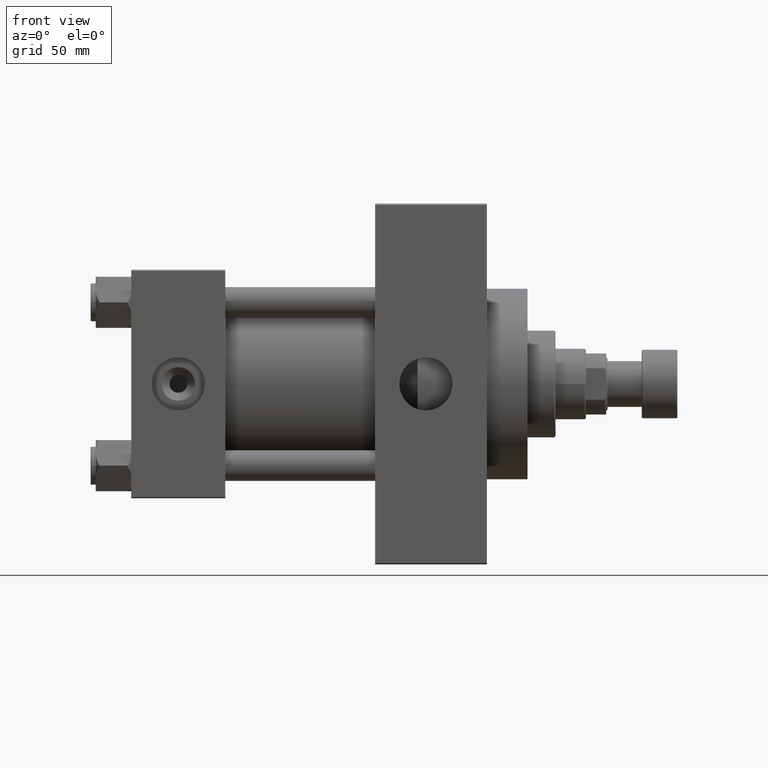
[diagram: clean part render]
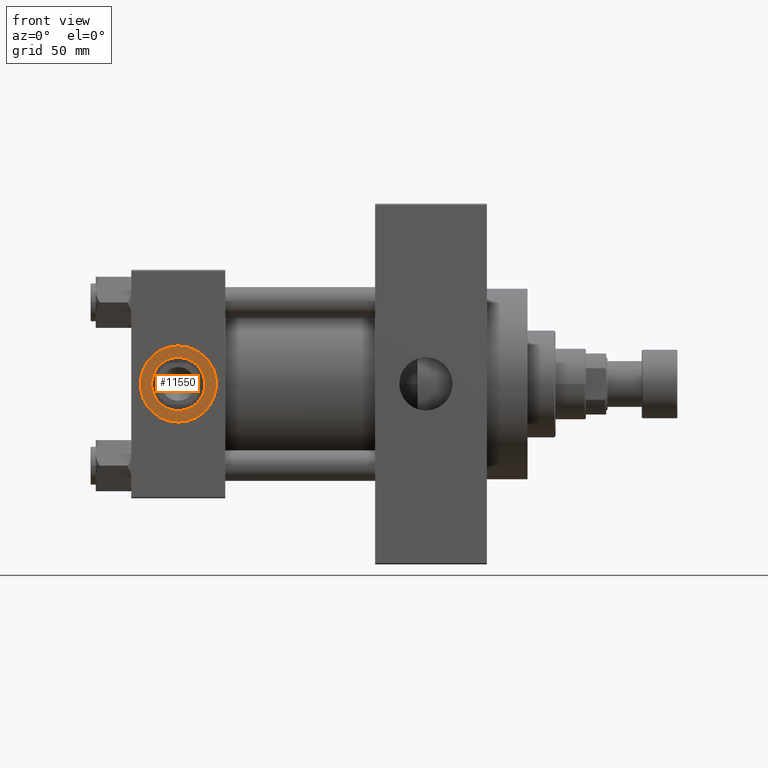
[diagram: same view with one face highlighted and labeled with its STEP entity id]
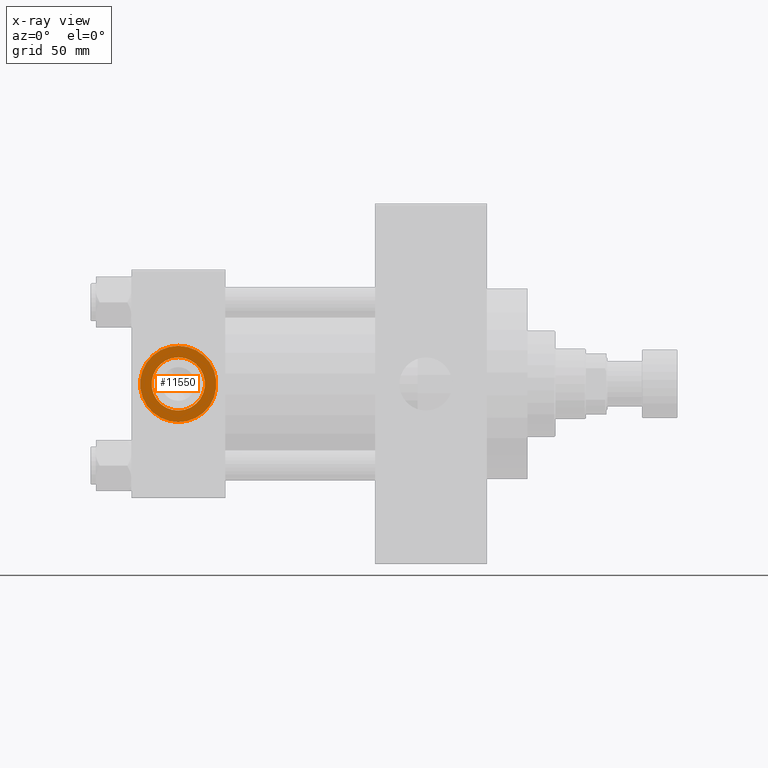
[diagram: x-ray of the same camera — body ghosted, the highlighted face saturated]
A machine part, front view. The second image highlights one B-rep face of the part: STEP entity #11550.
The next image is the same camera in x-ray: the body ghosted, the highlighted face saturated — about 0% of this face is hidden behind the body in this view.
In plain terms, the highlighted planar face has unit normal (0, -1, -0).
Its self-contained STEP definition (entity closure, byte-faithful):
#35 = VERTEX_POINT ( 'NONE', #4876 ) ;
#126 = CARTESIAN_POINT ( 'NONE',  ( 18.50000000000000000, -44.79999999999999716, -3.452099717193846907E-15 ) ) ;
#3184 = VERTEX_POINT ( 'NONE', #4484 ) ;
#4013 = AXIS2_PLACEMENT_3D ( 'NONE', #45015, #25270, #44522 ) ;
#4484 = CARTESIAN_POINT ( 'NONE',  ( 18.50000000000000000, -44.79999999999999716, -15.00000000000000533 ) ) ;
#4876 = CARTESIAN_POINT ( 'NONE',  ( 18.50000000000000355, -44.79999999999999716, 14.99999999999999822 ) ) ;
#6102 = EDGE_CURVE ( 'NONE', #35, #3184, #30265, .T. ) ;
#6652 = EDGE_LOOP ( 'NONE', ( #8529, #28188 ) ) ;
#7859 = DIRECTION ( 'NONE',  ( 0.000000000000000000, -1.000000000000000000, -8.673617379884036705E-17 ) ) ;
#7929 = EDGE_CURVE ( 'NONE', #36942, #21146, #16783, .T. ) ;
#8002 = CIRCLE ( 'NONE', #4013, 10.48000000000000043 ) ;
#8105 = DIRECTION ( 'NONE',  ( 0.000000000000000000, 0.000000000000000000, -1.000000000000000000 ) ) ;
#8121 = FACE_BOUND ( 'NONE', #34638, .T. ) ;
#8529 = ORIENTED_EDGE ( 'NONE', *, *, #21105, .T. ) ;
#9048 = EDGE_CURVE ( 'NONE', #21146, #36942, #8002, .T. ) ;
#11550 = ADVANCED_FACE ( 'NONE', ( #8121, #20106 ), #34603, .T. ) ;
#11860 = DIRECTION ( 'NONE',  ( 0.000000000000000000, -1.000000000000000000, -8.673617379884036705E-17 ) ) ;
#11895 = DIRECTION ( 'NONE',  ( 0.000000000000000000, 0.000000000000000000, -1.000000000000000000 ) ) ;
#14168 = DIRECTION ( 'NONE',  ( 0.000000000000000000, -1.000000000000000000, -8.673617379884036705E-17 ) ) ;
#16783 = CIRCLE ( 'NONE', #24737, 10.48000000000000043 ) ;
#18896 = DIRECTION ( 'NONE',  ( 0.000000000000000000, 0.000000000000000000, -1.000000000000000000 ) ) ;
#20106 = FACE_OUTER_BOUND ( 'NONE', #6652, .T. ) ;
#21105 = EDGE_CURVE ( 'NONE', #3184, #35, #32275, .T. ) ;
#21146 = VERTEX_POINT ( 'NONE', #22396 ) ;
#22155 = ORIENTED_EDGE ( 'NONE', *, *, #7929, .F. ) ;
#22396 = CARTESIAN_POINT ( 'NONE',  ( 18.50000000000000000, -44.79999999999999716, -10.48000000000000398 ) ) ;
#23269 = ORIENTED_EDGE ( 'NONE', *, *, #9048, .F. ) ;
#24737 = AXIS2_PLACEMENT_3D ( 'NONE', #126, #7859, #8105 ) ;
#25270 = DIRECTION ( 'NONE',  ( 0.000000000000000000, -1.000000000000000000, -8.673617379884036705E-17 ) ) ;
#26906 = CARTESIAN_POINT ( 'NONE',  ( 18.50000000000000000, -44.79999999999999716, -3.452099717193846907E-15 ) ) ;
#28188 = ORIENTED_EDGE ( 'NONE', *, *, #6102, .T. ) ;
#28688 = AXIS2_PLACEMENT_3D ( 'NONE', #26906, #46147, #11895 ) ;
#30265 = CIRCLE ( 'NONE', #28688, 15.00000000000000178 ) ;
#30643 = AXIS2_PLACEMENT_3D ( 'NONE', #37884, #14168, #18896 ) ;
#31621 = DIRECTION ( 'NONE',  ( 0.000000000000000000, 8.673617379884036705E-17, -1.000000000000000000 ) ) ;
#32275 = CIRCLE ( 'NONE', #30643, 15.00000000000000178 ) ;
#34541 = CARTESIAN_POINT ( 'NONE',  ( 18.50000000000000000, -44.79999999999999716, 10.47999999999999687 ) ) ;
#34603 = PLANE ( 'NONE',  #44838 ) ;
#34638 = EDGE_LOOP ( 'NONE', ( #23269, #22155 ) ) ;
#35360 = CARTESIAN_POINT ( 'NONE',  ( 18.50000000000000000, -44.79999999999999716, -3.452099717193846907E-15 ) ) ;
#36942 = VERTEX_POINT ( 'NONE', #34541 ) ;
#37884 = CARTESIAN_POINT ( 'NONE',  ( 18.50000000000000000, -44.79999999999999716, -3.452099717193846907E-15 ) ) ;
#44522 = DIRECTION ( 'NONE',  ( 0.000000000000000000, 0.000000000000000000, -1.000000000000000000 ) ) ;
#44838 = AXIS2_PLACEMENT_3D ( 'NONE', #35360, #11860, #31621 ) ;
#45015 = CARTESIAN_POINT ( 'NONE',  ( 18.50000000000000000, -44.79999999999999716, -3.452099717193846907E-15 ) ) ;
#46147 = DIRECTION ( 'NONE',  ( 0.000000000000000000, -1.000000000000000000, -8.673617379884036705E-17 ) ) ;